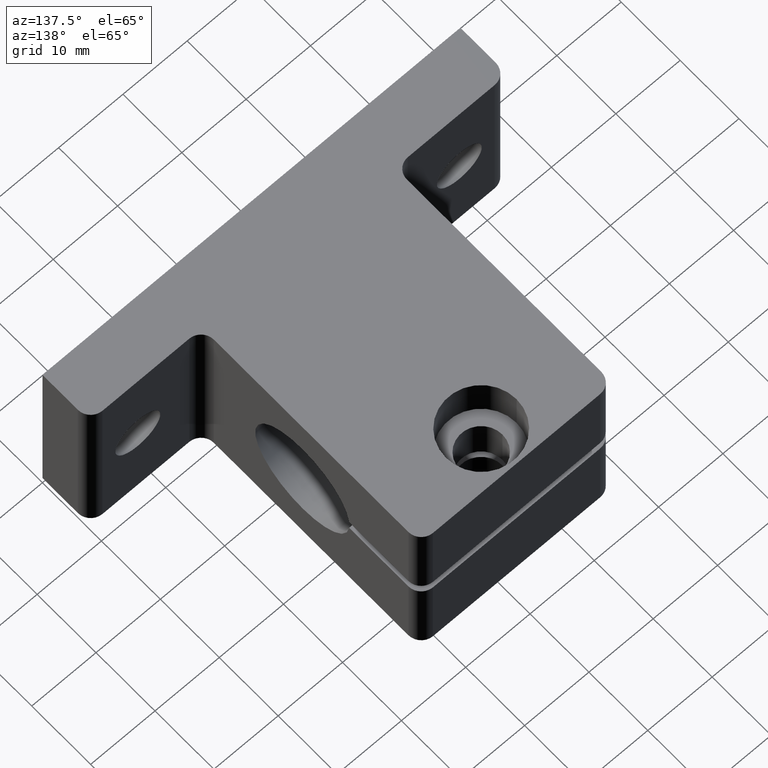
[diagram: clean part render]
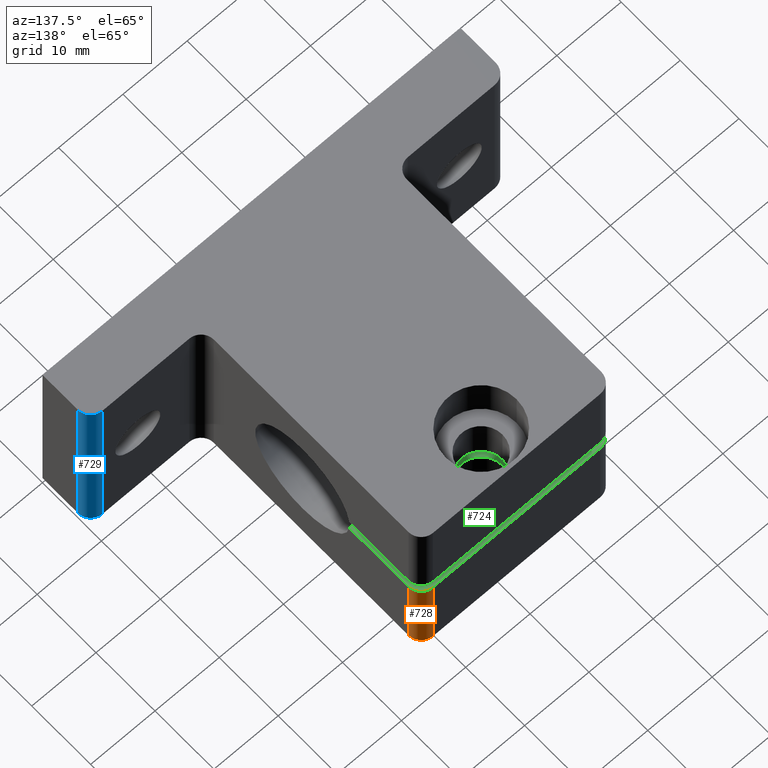
[diagram: same view with three faces highlighted in distinct colors, each labeled with its STEP entity id]
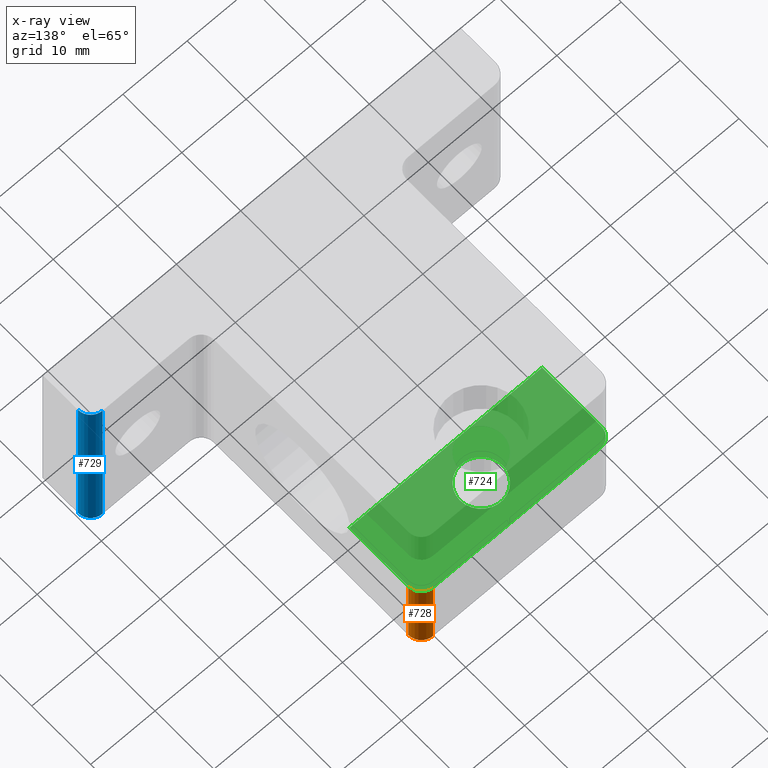
[diagram: x-ray of the same camera — body ghosted, the three highlighted faces saturated]
A machine part, auxiliary view with three faces highlighted in distinct colors.
The next image is the same camera in x-ray (body ghosted, the three faces saturated) — at least one of them is partly hidden behind the body in this view.
Their STEP definitions:

[orange] entity #728 — the highlighted cylindrical surface (edge-blend (fillet) strip) has radius 2 mm, axis along (0, 0, -1).
#12 = DIRECTION ( 'NONE',  ( -0.0000000000000000000, 0.0000000000000000000, -1.000000000000000000 ) ) ;
#55 = CARTESIAN_POINT ( 'NONE',  ( -19.50000000000000400, 45.00000000000000700, -14.74999999999999800 ) ) ;
#74 = CARTESIAN_POINT ( 'NONE',  ( -17.50000000000000000, 43.00000000000000000, -14.74999999999999800 ) ) ;
#90 = VERTEX_POINT ( 'NONE', #55 ) ;
#98 = CARTESIAN_POINT ( 'NONE',  ( -17.50000000000000000, 43.00000000000000000, -28.00000000000000000 ) ) ;
#158 = CARTESIAN_POINT ( 'NONE',  ( -19.50000000000000400, 45.00000000000000000, -28.00000000000000000 ) ) ;
#177 = VERTEX_POINT ( 'NONE', #74 ) ;
#202 = CARTESIAN_POINT ( 'NONE',  ( -19.50000000000000400, 43.00000000000000000, -14.74999999999999800 ) ) ;
#206 = DIRECTION ( 'NONE',  ( -0.0000000000000000000, -0.0000000000000000000, -1.000000000000000000 ) ) ;
#247 = CARTESIAN_POINT ( 'NONE',  ( -19.50000000000000400, 45.00000000000000000, -28.00000000000000000 ) ) ;
#266 = DIRECTION ( 'NONE',  ( 1.222564501943016600E-032, -1.303806837179633300E-016, 1.000000000000000000 ) ) ;
#268 = CARTESIAN_POINT ( 'NONE',  ( -17.50000000000000000, 43.00000000000000000, -14.74999999999999800 ) ) ;
#320 = DIRECTION ( 'NONE',  ( -1.000000000000000000, 0.0000000000000000000, 0.0000000000000000000 ) ) ;
#326 = DIRECTION ( 'NONE',  ( 0.0000000000000000000, 0.0000000000000000000, -1.000000000000000000 ) ) ;
#347 = DIRECTION ( 'NONE',  ( 1.000000000000000000, 0.0000000000000000000, 0.0000000000000000000 ) ) ;
#365 = DIRECTION ( 'NONE',  ( 0.0000000000000000000, 0.0000000000000000000, 1.000000000000000000 ) ) ;
#367 = CARTESIAN_POINT ( 'NONE',  ( -19.50000000000000400, 43.00000000000000000, -28.00000000000000000 ) ) ;
#371 = VERTEX_POINT ( 'NONE', #98 ) ;
#375 = VERTEX_POINT ( 'NONE', #158 ) ;
#411 = DIRECTION ( 'NONE',  ( 0.0000000000000000000, 1.000000000000000000, 0.0000000000000000000 ) ) ;
#416 = CARTESIAN_POINT ( 'NONE',  ( -19.50000000000000400, 43.00000000000000000, -28.00000000000000000 ) ) ;
#507 = LINE ( 'NONE', #247, #510 ) ;
#508 = CIRCLE ( 'NONE', #597, 2.000000000000001800 ) ;
#510 = VECTOR ( 'NONE', #206, 1000.000000000000000 ) ;
#565 = AXIS2_PLACEMENT_3D ( 'NONE', #367, #326, #320 ) ;
#597 = AXIS2_PLACEMENT_3D ( 'NONE', #202, #266, #411 ) ;
#608 = AXIS2_PLACEMENT_3D ( 'NONE', #416, #12, #347 ) ;
#670 = ORIENTED_EDGE ( 'NONE', *, *, #1107, .F. ) ;
#683 = ORIENTED_EDGE ( 'NONE', *, *, #1108, .F. ) ;
#687 = ORIENTED_EDGE ( 'NONE', *, *, #1137, .F. ) ;
#691 = ORIENTED_EDGE ( 'NONE', *, *, #1153, .F. ) ;
#728 = ADVANCED_FACE ( 'NONE', ( #848 ), #839, .T. ) ;
#810 = VECTOR ( 'NONE', #365, 1000.000000000000000 ) ;
#811 = LINE ( 'NONE', #268, #810 ) ;
#839 = CYLINDRICAL_SURFACE ( 'NONE', #565, 2.000000000000001800 ) ;
#848 = FACE_OUTER_BOUND ( 'NONE', #966, .T. ) ;
#966 = EDGE_LOOP ( 'NONE', ( #687, #683, #670, #691 ) ) ;
#1019 = CIRCLE ( 'NONE', #608, 2.000000000000001800 ) ;
#1107 = EDGE_CURVE ( 'NONE', #177, #90, #508, .T. ) ;
#1108 = EDGE_CURVE ( 'NONE', #90, #375, #507, .T. ) ;
#1137 = EDGE_CURVE ( 'NONE', #375, #371, #1019, .T. ) ;
#1153 = EDGE_CURVE ( 'NONE', #371, #177, #811, .T. ) ;

[blue] entity #729 — the highlighted cylindrical surface (edge-blend (fillet) strip) has radius 2 mm, axis along (0, 0, -1).
#36 = CARTESIAN_POINT ( 'NONE',  ( -1.999999999999999600, 5.999999999999992900, -28.00000000000000000 ) ) ;
#48 = DIRECTION ( 'NONE',  ( 1.000000000000000000, 0.0000000000000000000, 0.0000000000000000000 ) ) ;
#89 = CARTESIAN_POINT ( 'NONE',  ( -1.999999999999999600, 7.999999999999992900, -28.00000000000000000 ) ) ;
#125 = CARTESIAN_POINT ( 'NONE',  ( 0.0000000000000000000, 5.999999999999992900, 0.0000000000000000000 ) ) ;
#142 = CARTESIAN_POINT ( 'NONE',  ( 0.0000000000000000000, 5.999999999999991100, 0.0000000000000000000 ) ) ;
#167 = VERTEX_POINT ( 'NONE', #356 ) ;
#174 = VERTEX_POINT ( 'NONE', #181 ) ;
#181 = CARTESIAN_POINT ( 'NONE',  ( 0.0000000000000000000, 5.999999999999991100, -28.00000000000000000 ) ) ;
#211 = DIRECTION ( 'NONE',  ( 1.000000000000000000, 0.0000000000000000000, 0.0000000000000000000 ) ) ;
#221 = CARTESIAN_POINT ( 'NONE',  ( -1.999999999999999600, 5.999999999999992900, 0.0000000000000000000 ) ) ;
#254 = CARTESIAN_POINT ( 'NONE',  ( -1.999999999999999600, 7.999999999999992900, -28.00000000000000000 ) ) ;
#282 = DIRECTION ( 'NONE',  ( 0.0000000000000000000, -0.0000000000000000000, 1.000000000000000000 ) ) ;
#287 = DIRECTION ( 'NONE',  ( -0.0000000000000000000, -0.0000000000000000000, -1.000000000000000000 ) ) ;
#293 = VERTEX_POINT ( 'NONE', #89 ) ;
#304 = DIRECTION ( 'NONE',  ( 0.0000000000000000000, 0.0000000000000000000, 1.000000000000000000 ) ) ;
#340 = DIRECTION ( 'NONE',  ( 0.0000000000000000000, 0.0000000000000000000, -1.000000000000000000 ) ) ;
#356 = CARTESIAN_POINT ( 'NONE',  ( -1.999999999999999600, 7.999999999999992900, 0.0000000000000000000 ) ) ;
#379 = DIRECTION ( 'NONE',  ( -1.000000000000000000, 0.0000000000000000000, 0.0000000000000000000 ) ) ;
#387 = CARTESIAN_POINT ( 'NONE',  ( -1.999999999999999600, 5.999999999999992900, -28.00000000000000000 ) ) ;
#407 = VERTEX_POINT ( 'NONE', #142 ) ;
#468 = DIRECTION ( 'NONE',  ( -0.0000000000000000000, 0.0000000000000000000, -1.000000000000000000 ) ) ;
#511 = CIRCLE ( 'NONE', #599, 2.000000000000000000 ) ;
#566 = AXIS2_PLACEMENT_3D ( 'NONE', #36, #340, #379 ) ;
#599 = AXIS2_PLACEMENT_3D ( 'NONE', #221, #282, #211 ) ;
#610 = AXIS2_PLACEMENT_3D ( 'NONE', #387, #468, #48 ) ;
#646 = ORIENTED_EDGE ( 'NONE', *, *, #1143, .F. ) ;
#651 = ORIENTED_EDGE ( 'NONE', *, *, #1073, .F. ) ;
#684 = ORIENTED_EDGE ( 'NONE', *, *, #1120, .F. ) ;
#689 = ORIENTED_EDGE ( 'NONE', *, *, #1124, .F. ) ;
#729 = ADVANCED_FACE ( 'NONE', ( #843 ), #851, .T. ) ;
#779 = EDGE_LOOP ( 'NONE', ( #646, #689, #684, #651 ) ) ;
#843 = FACE_OUTER_BOUND ( 'NONE', #779, .T. ) ;
#851 = CYLINDRICAL_SURFACE ( 'NONE', #566, 2.000000000000000400 ) ;
#852 = VECTOR ( 'NONE', #304, 1000.000000000000000 ) ;
#856 = LINE ( 'NONE', #125, #852 ) ;
#1009 = CIRCLE ( 'NONE', #610, 2.000000000000000000 ) ;
#1030 = VECTOR ( 'NONE', #287, 1000.000000000000000 ) ;
#1032 = LINE ( 'NONE', #254, #1030 ) ;
#1073 = EDGE_CURVE ( 'NONE', #174, #407, #856, .T. ) ;
#1120 = EDGE_CURVE ( 'NONE', #407, #167, #511, .T. ) ;
#1124 = EDGE_CURVE ( 'NONE', #167, #293, #1032, .T. ) ;
#1143 = EDGE_CURVE ( 'NONE', #293, #174, #1009, .T. ) ;

[green] entity #724 — the highlighted planar face has unit normal (-0, 0, -1).
#28 = DIRECTION ( 'NONE',  ( 0.0000000000000000000, 1.000000000000000000, 1.303806837179633300E-016 ) ) ;
#31 = CARTESIAN_POINT ( 'NONE',  ( -47.50000000000000000, 44.99999999999999300, -14.74999999999999800 ) ) ;
#34 = CARTESIAN_POINT ( 'NONE',  ( -35.79999999999999700, 38.99999999999999300, -14.74999999999999800 ) ) ;
#47 = DIRECTION ( 'NONE',  ( -1.222564501943016600E-032, 1.303806837179633300E-016, -1.000000000000000000 ) ) ;
#55 = CARTESIAN_POINT ( 'NONE',  ( -19.50000000000000400, 45.00000000000000700, -14.74999999999999800 ) ) ;
#57 = CARTESIAN_POINT ( 'NONE',  ( -65.00000000000000000, 45.00000000000000000, -14.74999999999999800 ) ) ;
#67 = PLANE ( 'NONE',  #562 ) ;
#74 = CARTESIAN_POINT ( 'NONE',  ( -17.50000000000000000, 43.00000000000000000, -14.74999999999999800 ) ) ;
#86 = CARTESIAN_POINT ( 'NONE',  ( -32.50000000000000000, 38.99999999999999300, -14.74999999999999800 ) ) ;
#90 = VERTEX_POINT ( 'NONE', #55 ) ;
#113 = VERTEX_POINT ( 'NONE', #163 ) ;
#152 = VERTEX_POINT ( 'NONE', #236 ) ;
#163 = CARTESIAN_POINT ( 'NONE',  ( -47.50000000000000000, 32.96476616103699100, -14.74999999999999600 ) ) ;
#166 = DIRECTION ( 'NONE',  ( 1.000000000000000000, 9.376883653928687400E-017, -0.0000000000000000000 ) ) ;
#175 = CARTESIAN_POINT ( 'NONE',  ( -29.19999999999999900, 38.99999999999999300, -14.74999999999999800 ) ) ;
#177 = VERTEX_POINT ( 'NONE', #74 ) ;
#180 = CARTESIAN_POINT ( 'NONE',  ( -45.50000000000000000, 45.00000000000000000, -14.74999999999999800 ) ) ;
#187 = VERTEX_POINT ( 'NONE', #180 ) ;
#198 = CARTESIAN_POINT ( 'NONE',  ( -45.50000000000000000, 42.99999999999999300, -14.74999999999999800 ) ) ;
#202 = CARTESIAN_POINT ( 'NONE',  ( -19.50000000000000400, 43.00000000000000000, -14.74999999999999800 ) ) ;
#214 = CARTESIAN_POINT ( 'NONE',  ( -65.00000000000000000, 45.00000000000000000, -14.74999999999999800 ) ) ;
#231 = VERTEX_POINT ( 'NONE', #233 ) ;
#233 = CARTESIAN_POINT ( 'NONE',  ( -17.50000000000000000, 32.96476616103699100, -14.74999999999999800 ) ) ;
#236 = CARTESIAN_POINT ( 'NONE',  ( -47.50000000000000000, 42.99999999999999300, -14.74999999999999800 ) ) ;
#240 = DIRECTION ( 'NONE',  ( 0.0000000000000000000, 1.000000000000000000, 1.303806837179633300E-016 ) ) ;
#246 = DIRECTION ( 'NONE',  ( -1.222564501943016600E-032, 1.303806837179633300E-016, -1.000000000000000000 ) ) ;
#266 = DIRECTION ( 'NONE',  ( 1.222564501943016600E-032, -1.303806837179633300E-016, 1.000000000000000000 ) ) ;
#269 = DIRECTION ( 'NONE',  ( 1.222564501943016600E-032, -1.303806837179633300E-016, 1.000000000000000000 ) ) ;
#288 = CARTESIAN_POINT ( 'NONE',  ( -17.50000000000000000, 45.00000000000000700, -14.74999999999999800 ) ) ;
#357 = DIRECTION ( 'NONE',  ( -1.222564501943016600E-032, 1.303806837179633300E-016, -1.000000000000000000 ) ) ;
#369 = DIRECTION ( 'NONE',  ( 0.0000000000000000000, 1.000000000000000000, 0.0000000000000000000 ) ) ;
#395 = VERTEX_POINT ( 'NONE', #175 ) ;
#400 = DIRECTION ( 'NONE',  ( -0.0000000000000000000, 1.000000000000000000, 1.303806837179633300E-016 ) ) ;
#411 = DIRECTION ( 'NONE',  ( 0.0000000000000000000, 1.000000000000000000, 0.0000000000000000000 ) ) ;
#421 = DIRECTION ( 'NONE',  ( 0.0000000000000000000, 1.000000000000000000, 0.0000000000000000000 ) ) ;
#423 = DIRECTION ( 'NONE',  ( -1.000000000000000000, -9.376883653928687400E-017, 0.0000000000000000000 ) ) ;
#426 = CARTESIAN_POINT ( 'NONE',  ( -65.00000000000000000, 32.96476616103699100, -14.74999999999999800 ) ) ;
#428 = CARTESIAN_POINT ( 'NONE',  ( -32.50000000000000000, 38.99999999999999300, -14.74999999999999800 ) ) ;
#447 = DIRECTION ( 'NONE',  ( 0.0000000000000000000, 1.000000000000000000, 0.0000000000000000000 ) ) ;
#459 = VERTEX_POINT ( 'NONE', #34 ) ;
#508 = CIRCLE ( 'NONE', #597, 2.000000000000001800 ) ;
#551 = AXIS2_PLACEMENT_3D ( 'NONE', #86, #357, #447 ) ;
#562 = AXIS2_PLACEMENT_3D ( 'NONE', #57, #246, #240 ) ;
#597 = AXIS2_PLACEMENT_3D ( 'NONE', #202, #266, #411 ) ;
#605 = AXIS2_PLACEMENT_3D ( 'NONE', #198, #269, #369 ) ;
#609 = AXIS2_PLACEMENT_3D ( 'NONE', #428, #47, #421 ) ;
#639 = EDGE_CURVE ( 'NONE', #459, #395, #872, .T. ) ;
#642 = EDGE_CURVE ( 'NONE', #231, #113, #888, .T. ) ;
#724 = ADVANCED_FACE ( 'NONE', ( #841, #838 ), #67, .F. ) ;
#734 = ORIENTED_EDGE ( 'NONE', *, *, #1087, .F. ) ;
#738 = ORIENTED_EDGE ( 'NONE', *, *, #1107, .T. ) ;
#740 = ORIENTED_EDGE ( 'NONE', *, *, #1130, .T. ) ;
#753 = ORIENTED_EDGE ( 'NONE', *, *, #1158, .T. ) ;
#757 = ORIENTED_EDGE ( 'NONE', *, *, #1084, .F. ) ;
#783 = ORIENTED_EDGE ( 'NONE', *, *, #642, .F. ) ;
#793 = VECTOR ( 'NONE', #400, 1000.000000000000000 ) ;
#795 = LINE ( 'NONE', #288, #793 ) ;
#838 = FACE_OUTER_BOUND ( 'NONE', #982, .T. ) ;
#841 = FACE_BOUND ( 'NONE', #983, .T. ) ;
#860 = LINE ( 'NONE', #31, #862 ) ;
#862 = VECTOR ( 'NONE', #28, 1000.000000000000000 ) ;
#872 = CIRCLE ( 'NONE', #551, 3.299999999999997200 ) ;
#885 = VECTOR ( 'NONE', #423, 1000.000000000000000 ) ;
#888 = LINE ( 'NONE', #426, #885 ) ;
#893 = ORIENTED_EDGE ( 'NONE', *, *, #639, .T. ) ;
#906 = ORIENTED_EDGE ( 'NONE', *, *, #1138, .T. ) ;
#956 = LINE ( 'NONE', #214, #962 ) ;
#962 = VECTOR ( 'NONE', #166, 1000.000000000000000 ) ;
#982 = EDGE_LOOP ( 'NONE', ( #734, #740, #757, #783, #753, #738 ) ) ;
#983 = EDGE_LOOP ( 'NONE', ( #906, #893 ) ) ;
#1018 = CIRCLE ( 'NONE', #605, 2.000000000000001800 ) ;
#1034 = CIRCLE ( 'NONE', #609, 3.299999999999997200 ) ;
#1084 = EDGE_CURVE ( 'NONE', #113, #152, #860, .T. ) ;
#1087 = EDGE_CURVE ( 'NONE', #187, #90, #956, .T. ) ;
#1107 = EDGE_CURVE ( 'NONE', #177, #90, #508, .T. ) ;
#1130 = EDGE_CURVE ( 'NONE', #187, #152, #1018, .T. ) ;
#1138 = EDGE_CURVE ( 'NONE', #395, #459, #1034, .T. ) ;
#1158 = EDGE_CURVE ( 'NONE', #231, #177, #795, .T. ) ;